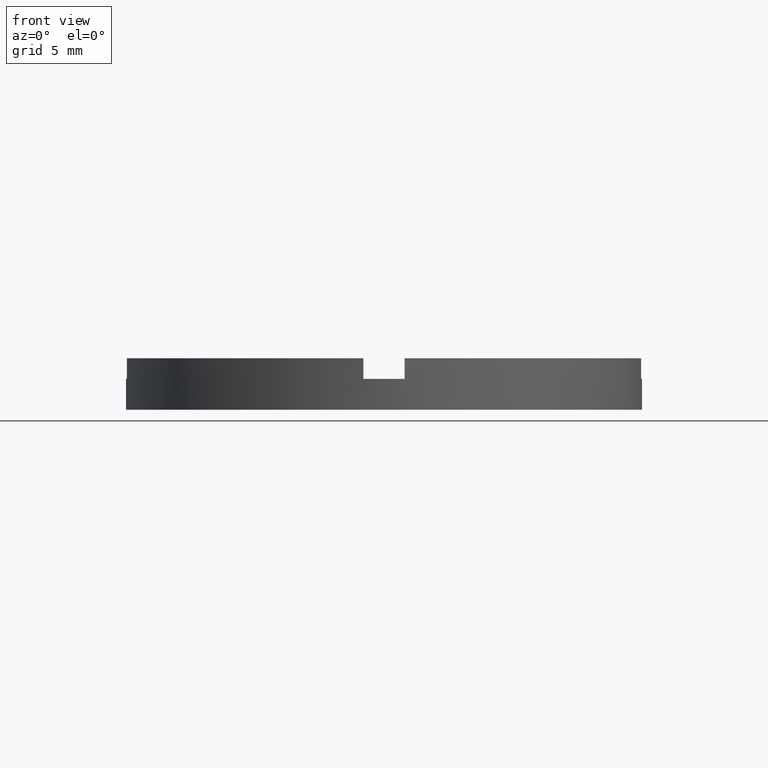
[diagram: clean part render]
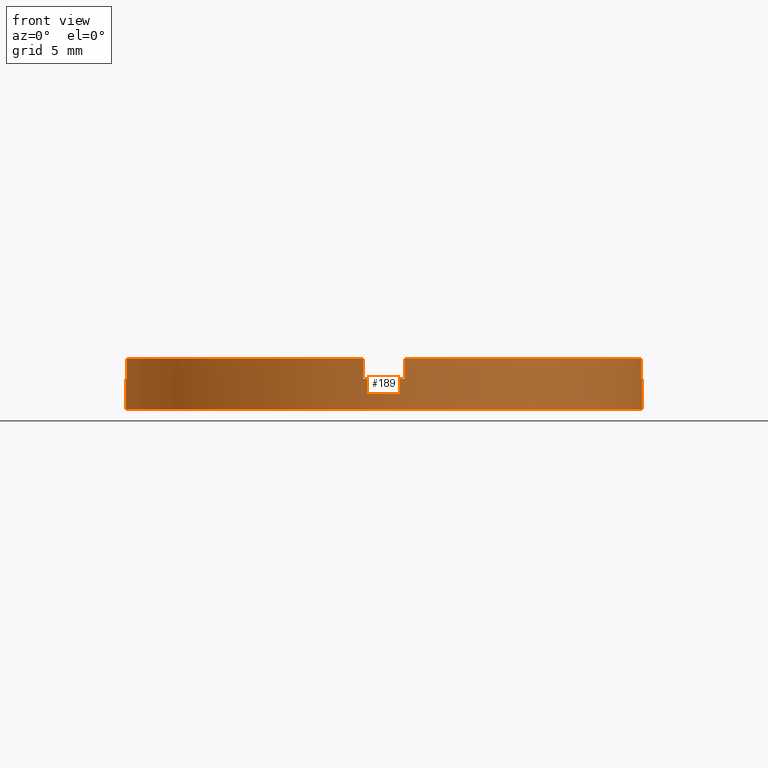
[diagram: same view with one face highlighted and labeled with its STEP entity id]
A machine part, front view. The second image highlights one B-rep face of the part: STEP entity #189.
In plain terms, the highlighted cylindrical surface (partial cylindrical patch) has radius 12.5 mm, axis along (-0, -0, -1).
Its self-contained STEP definition (entity closure, byte-faithful):
#1 = VERTEX_POINT ( 'NONE', #704 ) ;
#2 = DIRECTION ( 'NONE',  ( 1.000000000000000000, 0.000000000000000000, 0.000000000000000000 ) ) ;
#5 = CARTESIAN_POINT ( 'NONE',  ( 0.000000000000000000, 0.000000000000000000, 2.500000000000000000 ) ) ;
#8 = DIRECTION ( 'NONE',  ( 1.000000000000000000, 0.000000000000000000, 0.000000000000000000 ) ) ;
#14 = CARTESIAN_POINT ( 'NONE',  ( -12.50000000000000000, 0.000000000000000000, 2.500000000000000000 ) ) ;
#26 = EDGE_CURVE ( 'NONE', #216, #480, #639, .T. ) ;
#30 = CARTESIAN_POINT ( 'NONE',  ( 0.000000000000000000, 0.000000000000000000, 1.500000000000000000 ) ) ;
#36 = DIRECTION ( 'NONE',  ( -0.000000000000000000, -0.000000000000000000, -1.000000000000000000 ) ) ;
#40 = DIRECTION ( 'NONE',  ( 0.000000000000000000, 0.000000000000000000, 1.000000000000000000 ) ) ;
#57 = EDGE_CURVE ( 'NONE', #160, #170, #633, .T. ) ;
#61 = CARTESIAN_POINT ( 'NONE',  ( 12.50000000000000000, 1.530808498934191521E-15, 2.500000000000000000 ) ) ;
#62 = AXIS2_PLACEMENT_3D ( 'NONE', #5, #727, #8 ) ;
#70 = DIRECTION ( 'NONE',  ( -0.000000000000000000, -0.000000000000000000, -1.000000000000000000 ) ) ;
#73 = DIRECTION ( 'NONE',  ( 1.000000000000000000, 0.000000000000000000, 0.000000000000000000 ) ) ;
#76 = CARTESIAN_POINT ( 'NONE',  ( 12.45993579437710075, -1.000000000000159872, 2.500000000000000000 ) ) ;
#82 = DIRECTION ( 'NONE',  ( 0.000000000000000000, 0.000000000000000000, 1.000000000000000000 ) ) ;
#84 = CARTESIAN_POINT ( 'NONE',  ( -12.50000000000000000, 0.000000000000000000, 1.500000000000000000 ) ) ;
#104 = LINE ( 'NONE', #294, #365 ) ;
#110 = LINE ( 'NONE', #223, #138 ) ;
#115 = CIRCLE ( 'NONE', #605, 12.50000000000000000 ) ;
#116 = VECTOR ( 'NONE', #70, 1000.000000000000000 ) ;
#138 = VECTOR ( 'NONE', #407, 1000.000000000000000 ) ;
#139 = VECTOR ( 'NONE', #697, 1000.000000000000000 ) ;
#146 = CARTESIAN_POINT ( 'NONE',  ( 12.50000000000000000, 1.530808498934191521E-15, 1.500000000000000000 ) ) ;
#151 = VECTOR ( 'NONE', #36, 1000.000000000000000 ) ;
#157 = CYLINDRICAL_SURFACE ( 'NONE', #261, 12.50000000000000000 ) ;
#160 = VERTEX_POINT ( 'NONE', #146 ) ;
#165 = ORIENTED_EDGE ( 'NONE', *, *, #319, .T. ) ;
#166 = CARTESIAN_POINT ( 'NONE',  ( -1.000000000000163647, -12.45993579437710075, 2.500000000000000000 ) ) ;
#170 = VERTEX_POINT ( 'NONE', #763 ) ;
#172 = ORIENTED_EDGE ( 'NONE', *, *, #598, .F. ) ;
#179 = AXIS2_PLACEMENT_3D ( 'NONE', #299, #587, #583 ) ;
#185 = EDGE_CURVE ( 'NONE', #231, #409, #411, .T. ) ;
#189 = ADVANCED_FACE ( 'NONE', ( #416 ), #157, .T. ) ;
#194 = CIRCLE ( 'NONE', #390, 12.50000000000000000 ) ;
#216 = VERTEX_POINT ( 'NONE', #340 ) ;
#219 = ORIENTED_EDGE ( 'NONE', *, *, #227, .T. ) ;
#222 = ORIENTED_EDGE ( 'NONE', *, *, #274, .F. ) ;
#223 = CARTESIAN_POINT ( 'NONE',  ( -12.45993579437711141, -1.000000000000022204, 2.500000000000000000 ) ) ;
#227 = EDGE_CURVE ( 'NONE', #525, #756, #415, .T. ) ;
#228 = VERTEX_POINT ( 'NONE', #556 ) ;
#231 = VERTEX_POINT ( 'NONE', #675 ) ;
#261 = AXIS2_PLACEMENT_3D ( 'NONE', #324, #770, #458 ) ;
#274 = EDGE_CURVE ( 'NONE', #677, #480, #674, .T. ) ;
#280 = CARTESIAN_POINT ( 'NONE',  ( -1.000000000000163647, -12.45993579437710075, 2.500000000000000000 ) ) ;
#293 = EDGE_CURVE ( 'NONE', #231, #364, #398, .T. ) ;
#294 = CARTESIAN_POINT ( 'NONE',  ( 12.45993579437710075, -1.000000000000159872, 2.500000000000000000 ) ) ;
#299 = CARTESIAN_POINT ( 'NONE',  ( 0.000000000000000000, 0.000000000000000000, 1.500000000000000000 ) ) ;
#313 = DIRECTION ( 'NONE',  ( -0.000000000000000000, -0.000000000000000000, -1.000000000000000000 ) ) ;
#315 = CARTESIAN_POINT ( 'NONE',  ( -12.50000000000000000, 0.000000000000000000, 0.000000000000000000 ) ) ;
#317 = AXIS2_PLACEMENT_3D ( 'NONE', #493, #548, #544 ) ;
#319 = EDGE_CURVE ( 'NONE', #677, #1, #110, .T. ) ;
#324 = CARTESIAN_POINT ( 'NONE',  ( 0.000000000000000000, 0.000000000000000000, 2.500000000000000000 ) ) ;
#325 = EDGE_CURVE ( 'NONE', #228, #160, #664, .T. ) ;
#340 = CARTESIAN_POINT ( 'NONE',  ( -1.000000000000163647, -12.45993579437710075, 1.500000000000000000 ) ) ;
#352 = EDGE_CURVE ( 'NONE', #756, #170, #115, .T. ) ;
#359 = CARTESIAN_POINT ( 'NONE',  ( 0.9999999999998363531, -12.45993579437712739, 2.500000000000000000 ) ) ;
#364 = VERTEX_POINT ( 'NONE', #76 ) ;
#365 = VECTOR ( 'NONE', #40, 1000.000000000000000 ) ;
#390 = AXIS2_PLACEMENT_3D ( 'NONE', #718, #610, #547 ) ;
#398 = CIRCLE ( 'NONE', #317, 12.50000000000000000 ) ;
#407 = DIRECTION ( 'NONE',  ( -0.000000000000000000, -0.000000000000000000, -1.000000000000000000 ) ) ;
#409 = VERTEX_POINT ( 'NONE', #594 ) ;
#411 = LINE ( 'NONE', #359, #151 ) ;
#415 = LINE ( 'NONE', #14, #635 ) ;
#416 = FACE_OUTER_BOUND ( 'NONE', #738, .T. ) ;
#431 = AXIS2_PLACEMENT_3D ( 'NONE', #30, #586, #73 ) ;
#458 = DIRECTION ( 'NONE',  ( -1.000000000000000000, 0.000000000000000000, 0.000000000000000000 ) ) ;
#467 = EDGE_CURVE ( 'NONE', #525, #1, #665, .T. ) ;
#480 = VERTEX_POINT ( 'NONE', #166 ) ;
#485 = ORIENTED_EDGE ( 'NONE', *, *, #535, .T. ) ;
#493 = CARTESIAN_POINT ( 'NONE',  ( 0.000000000000000000, 0.000000000000000000, 2.500000000000000000 ) ) ;
#494 = ORIENTED_EDGE ( 'NONE', *, *, #325, .F. ) ;
#525 = VERTEX_POINT ( 'NONE', #84 ) ;
#535 = EDGE_CURVE ( 'NONE', #228, #364, #104, .T. ) ;
#544 = DIRECTION ( 'NONE',  ( 1.000000000000000000, 0.000000000000000000, 0.000000000000000000 ) ) ;
#547 = DIRECTION ( 'NONE',  ( 1.000000000000000000, 0.000000000000000000, 0.000000000000000000 ) ) ;
#548 = DIRECTION ( 'NONE',  ( 0.000000000000000000, 0.000000000000000000, 1.000000000000000000 ) ) ;
#556 = CARTESIAN_POINT ( 'NONE',  ( 12.45993579437710075, -1.000000000000159872, 1.500000000000000000 ) ) ;
#583 = DIRECTION ( 'NONE',  ( 1.000000000000000000, 0.000000000000000000, 0.000000000000000000 ) ) ;
#586 = DIRECTION ( 'NONE',  ( 0.000000000000000000, 0.000000000000000000, 1.000000000000000000 ) ) ;
#587 = DIRECTION ( 'NONE',  ( 0.000000000000000000, 0.000000000000000000, 1.000000000000000000 ) ) ;
#594 = CARTESIAN_POINT ( 'NONE',  ( 0.9999999999998363531, -12.45993579437712739, 1.500000000000000000 ) ) ;
#598 = EDGE_CURVE ( 'NONE', #216, #409, #194, .T. ) ;
#605 = AXIS2_PLACEMENT_3D ( 'NONE', #780, #82, #2 ) ;
#610 = DIRECTION ( 'NONE',  ( -0.000000000000000000, 0.000000000000000000, 1.000000000000000000 ) ) ;
#633 = LINE ( 'NONE', #61, #116 ) ;
#635 = VECTOR ( 'NONE', #313, 1000.000000000000000 ) ;
#639 = LINE ( 'NONE', #280, #139 ) ;
#664 = CIRCLE ( 'NONE', #431, 12.50000000000000000 ) ;
#665 = CIRCLE ( 'NONE', #179, 12.50000000000000000 ) ;
#674 = CIRCLE ( 'NONE', #62, 12.50000000000000000 ) ;
#675 = CARTESIAN_POINT ( 'NONE',  ( 0.9999999999998363531, -12.45993579437712739, 2.500000000000000000 ) ) ;
#676 = CARTESIAN_POINT ( 'NONE',  ( -12.45993579437711141, -1.000000000000022204, 2.500000000000000000 ) ) ;
#677 = VERTEX_POINT ( 'NONE', #676 ) ;
#686 = ORIENTED_EDGE ( 'NONE', *, *, #352, .T. ) ;
#697 = DIRECTION ( 'NONE',  ( 0.000000000000000000, 0.000000000000000000, 1.000000000000000000 ) ) ;
#704 = CARTESIAN_POINT ( 'NONE',  ( -12.45993579437711141, -1.000000000000022204, 1.500000000000000000 ) ) ;
#718 = CARTESIAN_POINT ( 'NONE',  ( 0.000000000000000000, 0.000000000000000000, 1.500000000000000000 ) ) ;
#727 = DIRECTION ( 'NONE',  ( 0.000000000000000000, 0.000000000000000000, 1.000000000000000000 ) ) ;
#738 = EDGE_LOOP ( 'NONE', ( #750, #494, #485, #755, #749, #172, #743, #222, #165, #753, #219, #686 ) ) ;
#743 = ORIENTED_EDGE ( 'NONE', *, *, #26, .T. ) ;
#749 = ORIENTED_EDGE ( 'NONE', *, *, #185, .T. ) ;
#750 = ORIENTED_EDGE ( 'NONE', *, *, #57, .F. ) ;
#753 = ORIENTED_EDGE ( 'NONE', *, *, #467, .F. ) ;
#755 = ORIENTED_EDGE ( 'NONE', *, *, #293, .F. ) ;
#756 = VERTEX_POINT ( 'NONE', #315 ) ;
#763 = CARTESIAN_POINT ( 'NONE',  ( 12.50000000000000000, 1.530808498934191521E-15, 0.000000000000000000 ) ) ;
#770 = DIRECTION ( 'NONE',  ( -0.000000000000000000, -0.000000000000000000, -1.000000000000000000 ) ) ;
#780 = CARTESIAN_POINT ( 'NONE',  ( 0.000000000000000000, 0.000000000000000000, 0.000000000000000000 ) ) ;